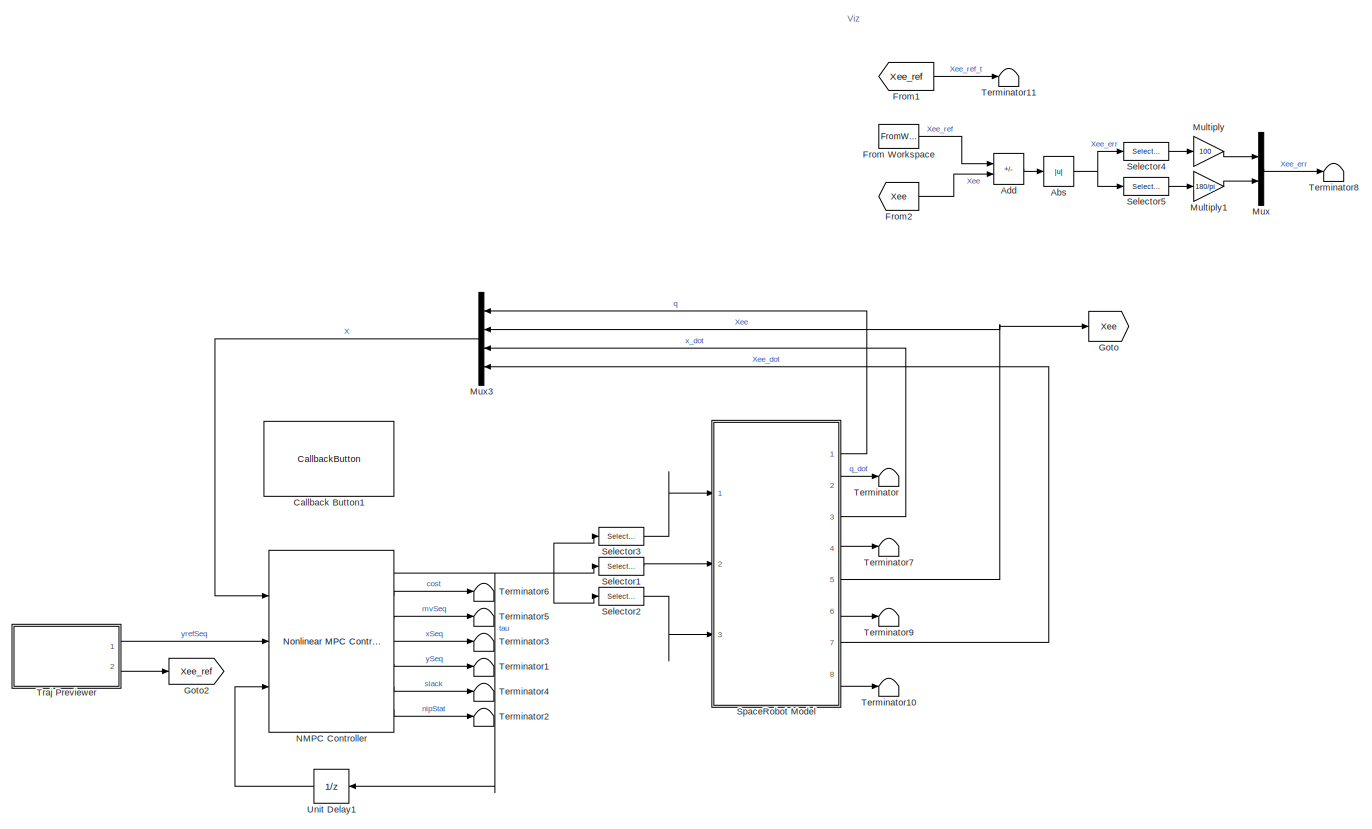
[diagram: root canvas - part 1/1, most of the canvas]
MODEL slx_92b3ca0087cb
KIND model
CONFIG AbsTol = auto
CONFIG EnableMultiTasking = off
CONFIG FixedStep = Ts
CONFIG MaxStep = auto
CONFIG MinStep = auto
CONFIG RelTol = 1e-3
CONFIG SampleTimeConstraint = Unconstrained
CONFIG SolverName = ode15s
CONFIG StartTime = 0.0
CONFIG StopTime = 10.2
BLOCK [Abs] Abs
  Commented = through
  SaturateOnIntegerOverflow = off
BLOCK [Sum] Add
  IconShape = rectangular
  Inputs = +-
  Ports = [2, 1]
BLOCK [CallbackButton] Callback Button1
  ButtonText = Animate results
  ClickFcn = close all\ntry\n    sr.animate(out.q, 'fps', 17, 'rate', 1); \ncatch\n    close all\nend
BLOCK [FromWorkspace] From Workspace
  VariableName = traj
BLOCK [From] From1
  GotoTag = Xee_ref
BLOCK [From] From2
  GotoTag = Xee
BLOCK [Goto] Goto
  GotoTag = Xee
BLOCK [Goto] Goto2
  GotoTag = Xee_ref
BLOCK [Gain] Multiply
  Gain = 100
BLOCK [Gain] Multiply1
  Gain = 180/pi
BLOCK [Mux] Mux
  DisplayOption = bar
  Inputs = 2
  Ports = [2, 1]
BLOCK [Mux] Mux3
  DisplayOption = bar
  NameLocation = top
  Ports = [4, 1]
BLOCK [Reference] NMPC Controller  REF=mpclib/Nonlinear MPC Controller  (lib defined in mdl_ae329e0e0455)
  Ports = [3, 7]
  SCDEnableBlockLinearizationSpecification = on
  SourceBlock = mpclib/Nonlinear MPC Controller
  SourceProductBaseCode = MP
  SourceType = NonlinearMPC
BLOCK [Selector] Selector1
  IndexOptions = Index vector (dialog)
  Indices = [4:6]
  OutputSizes = 1
  Ports = [1, 1]
BLOCK [Selector] Selector2
  IndexOptions = Index vector (dialog)
  Indices = [7:N]
  OutputSizes = 1
  Ports = [1, 1]
BLOCK [Selector] Selector3
  IndexOptions = Index vector (dialog)
  Indices = [1:3]
  OutputSizes = 1
  Ports = [1, 1]
BLOCK [Selector] Selector4
  IndexOptions = Index vector (dialog)
  Indices = [1:3]
  OutputSizes = 1
  Ports = [1, 1]
BLOCK [Selector] Selector5
  IndexOptions = Index vector (dialog)
  Indices = [4:6]
  OutputSizes = 1
  Ports = [1, 1]
BLOCK [SubSystem] SpaceRobot Model
  Ports = [3, 8]
  ReferencedSubsystem = SpaceRobot_Model
  RequestExecContextInheritance = off
  jointCstr = off
  q_0 = q0
  q_dot_0 = q_dot_0
  spaceRobot = sr
BLOCK [Terminator] Terminator
BLOCK [Terminator] Terminator1
BLOCK [Terminator] Terminator10
BLOCK [Terminator] Terminator11
BLOCK [Terminator] Terminator2
BLOCK [Terminator] Terminator3
BLOCK [Terminator] Terminator4
BLOCK [Terminator] Terminator5
BLOCK [Terminator] Terminator6
BLOCK [Terminator] Terminator7
BLOCK [Terminator] Terminator8
BLOCK [Terminator] Terminator9
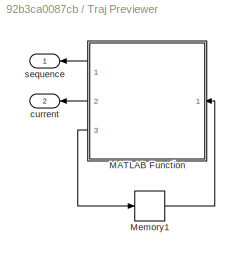
BLOCK [SubSystem] Traj Previewer
  NameLocation = top
  Ports = [0, 2]
  RequestExecContextInheritance = off
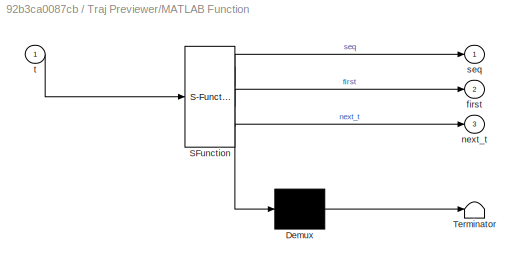
BLOCK [SubSystem] Traj Previewer/MATLAB Function
  ErrorFcn = Stateflow.Translate.translate
  PermitHierarchicalResolution = ExplicitOnly
  Ports = [1, 3]
  RequestExecContextInheritance = off
  SFBlockType = MATLAB Function
  TreatAsAtomicUnit = on
BLOCK [Demux] Traj Previewer/MATLAB Function/ Demux 
  Outputs = 1
  Ports = [1, 1]
BLOCK [S-Function] Traj Previewer/MATLAB Function/ SFunction 
  EnableBusSupport = on
  FunctionName = sf_sfun
  Parameters = data,steps
  PortCounts = [1 4]
  Ports = [1, 4]
  SFcnIsStateOwnerBlock = off
  SFunctionDeploymentMode = off
  Tag = Stateflow S-Function 8
BLOCK [Terminator] Traj Previewer/MATLAB Function/ Terminator 
BLOCK [Outport] Traj Previewer/MATLAB Function/first
  Port = 2
BLOCK [Outport] Traj Previewer/MATLAB Function/next_t
  Port = 3
BLOCK [Outport] Traj Previewer/MATLAB Function/seq
BLOCK [Inport] Traj Previewer/MATLAB Function/t
BLOCK [Memory] Traj Previewer/Memory1
  InheritSampleTime = on
  LinearizeAsDelay = on
BLOCK [Outport] Traj Previewer/current
  Port = 2
BLOCK [Outport] Traj Previewer/sequence
BLOCK [UnitDelay] Unit Delay1
  HasFrameUpgradeWarning = on
  SampleTime = -1
ANNOTATION (root): Viz
NET Abs:1 -> Selector4:1, Selector5:1
LINE Add:1 -> Abs:1
LINE From Workspace:1 -> Add:1
LINE From1:1 -> Terminator11:1
LINE From2:1 -> Add:2
LINE Multiply1:1 -> Mux:2
LINE Multiply:1 -> Mux:1
LINE Mux3:1 -> NMPC Controller:1
LINE Mux:1 -> Terminator8:1
NET NMPC Controller:1 -> Selector1:1, Selector2:1, Selector3:1, Unit Delay1:1
LINE NMPC Controller:2 -> Terminator6:1
LINE NMPC Controller:3 -> Terminator5:1
LINE NMPC Controller:4 -> Terminator3:1
LINE NMPC Controller:5 -> Terminator1:1
LINE NMPC Controller:6 -> Terminator4:1
LINE NMPC Controller:7 -> Terminator2:1
LINE Selector1:1 -> SpaceRobot Model:2
LINE Selector2:1 -> SpaceRobot Model:3
LINE Selector3:1 -> SpaceRobot Model:1
LINE Selector4:1 -> Multiply:1
LINE Selector5:1 -> Multiply1:1
LINE SpaceRobot Model:1 -> Mux3:1
LINE SpaceRobot Model:2 -> Terminator:1
LINE SpaceRobot Model:3 -> Mux3:3
LINE SpaceRobot Model:4 -> Terminator7:1
NET SpaceRobot Model:5 -> Goto:1, Mux3:2
LINE SpaceRobot Model:6 -> Terminator9:1
LINE SpaceRobot Model:7 -> Mux3:4
LINE SpaceRobot Model:8 -> Terminator10:1
LINE Traj Previewer/MATLAB Function:1 -> Traj Previewer/sequence:1
LINE Traj Previewer/MATLAB Function:2 -> Traj Previewer/current:1
LINE Traj Previewer/MATLAB Function:3 -> Traj Previewer/Memory1:1
LINE Traj Previewer/Memory1:1 -> Traj Previewer/MATLAB Function:1
LINE Traj Previewer:1 -> NMPC Controller:2
LINE Traj Previewer:2 -> Goto2:1
LINE Unit Delay1:1 -> NMPC Controller:3
note: NET lines group one-source signal fan-out (src -> all destinations, sorted); 1:1 wires keep LINE
CHART Traj Previewer/MATLAB Function states=1 transitions=1
  STATE_LABEL 'eML_blk_kernel()'
  STATE_LABEL "SCRIPT:\nfunction [seq,first,next_t] = fcn(data,steps,t)\n%#codegen\n[seq,first,next_t] = mpcblock_preview('ref',data,steps,t);"
CHART  states=0 transitions=0
